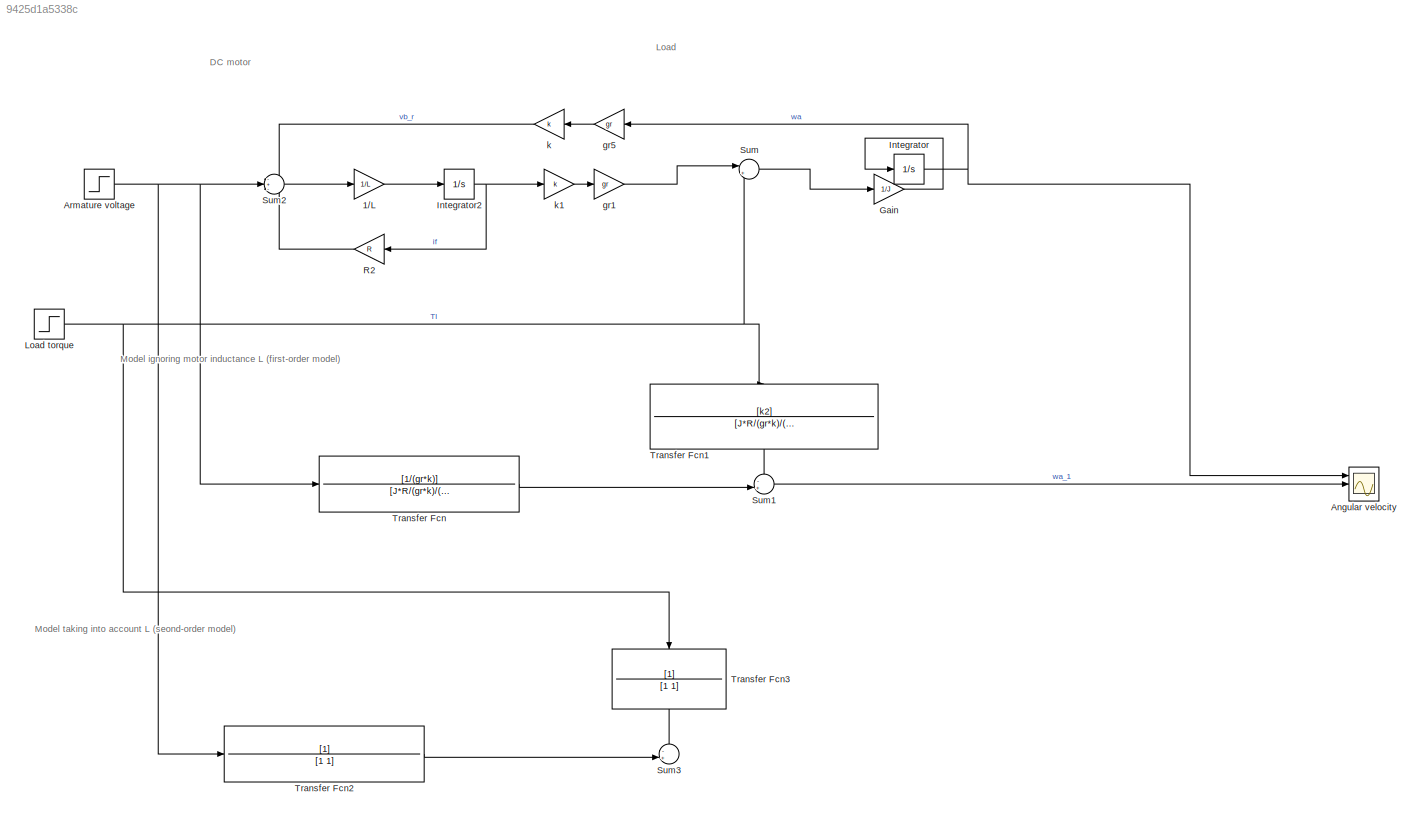
MODEL slx_9425d1a5338c
KIND model
CONFIG AbsTol = auto
CONFIG EnableMultiTasking = off
CONFIG FixedStep = auto
CONFIG MaxStep = 1e-4
CONFIG MinStep = auto
CONFIG RelTol = 1e-3
CONFIG SampleTimeConstraint = Unconstrained
CONFIG SolverName = VariableStepAuto
CONFIG StartTime = 0.0
CONFIG StopTime = 1
BLOCK [Gain] 1//L
  Gain = 1/L
BLOCK [Scope] Angular velocity
  Floating = off
  NumInputPorts = 3
  Ports = [3]
  ScopeSpecificationString = Simulink.scopes.TimeScopeBlockCfg('CurrentConfiguration', extmgr.ConfigurationSet(extmgr.Configuration('Core','General UI',true),extmgr.Configuration('Core','Source UI',true),extmgr.Configuration('Sources','WiredSimulink',true),extmgr.Configuration('Visuals','Time Domain',true,'SerializedDisplays',{struct('MinYLimReal','-0.01535','MaxYLimReal','0.13813','YLabelReal','','MinYLimMag','0.00000','MaxY...<+1431ch>
BLOCK [Step] Armature voltage
  After = 12
  SampleTime = 0
  Time = 0
BLOCK [Gain] Gain
  Gain = 1/J
BLOCK [Integrator] Integrator
  Ports = [1, 1]
BLOCK [Integrator] Integrator2
  Ports = [1, 1]
BLOCK [Step] Load torque
  After = 10
  SampleTime = 0
  Time = 0.5
BLOCK [Gain] R2
  Gain = R
BLOCK [Sum] Sum
  Inputs = |+-
  Ports = [2, 1]
BLOCK [Sum] Sum1
  Inputs = -+|
  Ports = [2, 1]
BLOCK [Sum] Sum2
  Inputs = -+-
  Ports = [3, 1]
BLOCK [Sum] Sum3
  Inputs = -+|
  Ports = [2, 1]
BLOCK [TransferFcn] Transfer Fcn
  Denominator = [J*R/(gr*k)/(gr*k) 1]
  Numerator = [1/(gr*k)]
BLOCK [TransferFcn] Transfer Fcn1
  Denominator = [J*R/(gr*k)/(gr*k) 1]
  NameLocation = left
  Numerator = [k2]
BLOCK [TransferFcn] Transfer Fcn2
  Denominator = [1 1]
BLOCK [TransferFcn] Transfer Fcn3
  Denominator = [1 1]
  NameLocation = left
BLOCK [Gain] gr1
  Gain = gr
BLOCK [Gain] gr5
  Gain = gr
  NameLocation = top
BLOCK [Gain] k
  Gain = k
BLOCK [Gain] k1
  Gain = k
ANNOTATION (root): DC motor
ANNOTATION (root): Load
ANNOTATION (root): Model ignoring motor inductance L (first-order model)
ANNOTATION (root): Model taking into account L (seond-order model)
LINE 1//L:1 -> Integrator2:1
NET Armature voltage:1 -> Sum2:2, Transfer Fcn2:1, Transfer Fcn:1
LINE Gain:1 -> Integrator:1
NET Integrator2:1 -> R2:1, k1:1
NET Integrator:1 -> Angular velocity:1, gr5:1
NET Load torque:1 -> Sum:2, Transfer Fcn1:1, Transfer Fcn3:1
LINE R2:1 -> Sum2:3
LINE Sum1:1 -> Angular velocity:2
LINE Sum2:1 -> 1//L:1
LINE Sum:1 -> Gain:1
LINE Transfer Fcn1:1 -> Sum1:1
LINE Transfer Fcn2:1 -> Sum3:2
LINE Transfer Fcn3:1 -> Sum3:1
LINE Transfer Fcn:1 -> Sum1:2
LINE gr1:1 -> Sum:1
LINE gr5:1 -> k:1
LINE k1:1 -> gr1:1
LINE k:1 -> Sum2:1
note: NET lines group one-source signal fan-out (src -> all destinations, sorted); 1:1 wires keep LINE
